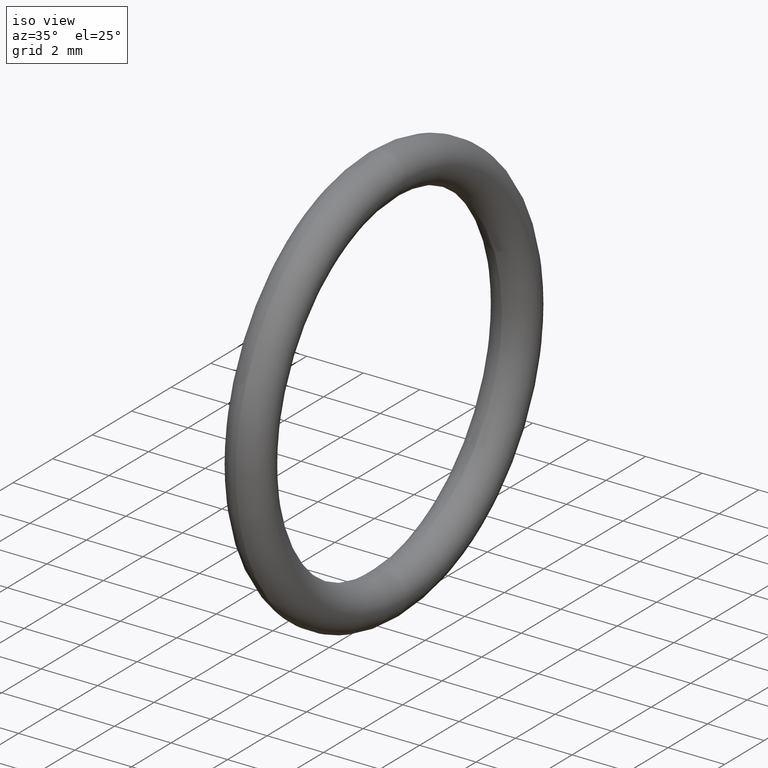
[diagram: clean part render]
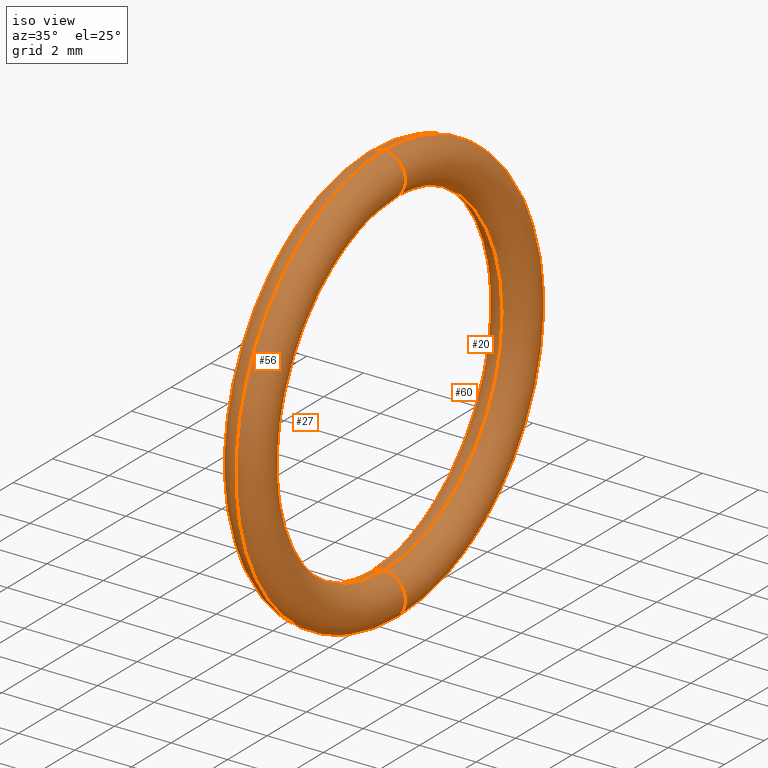
[diagram: same view with one multi-face feature highlighted, each face labeled with its STEP entity id]
A machine part, iso view. The highlighted faces form ONE feature: a constant-radius fillet chain: 4 tangent blend faces with common blend radius 0.762 mm. The faces share edges in the B-rep.
Their STEP definitions:
[1] entity #27 (Torus):
#1 = CIRCLE ( 'NONE', #5, 0.2949999999999999800 ) ;
#2 = DIRECTION ( 'NONE',  ( 0.0000000000000000000, 0.0000000000000000000, 1.000000000000000000 ) ) ;
#3 = DIRECTION ( 'NONE',  ( -1.000000000000000000, 0.0000000000000000000, 0.0000000000000000000 ) ) ;
#4 = CARTESIAN_POINT ( 'NONE',  ( 0.1000000000000000500, 0.0000000000000000000, 0.0000000000000000000 ) ) ;
#5 = AXIS2_PLACEMENT_3D ( 'NONE', #4, #3, #2 ) ;
#24 = EDGE_CURVE ( 'NONE', #52, #49, #71, .T. ) ;
#25 = EDGE_CURVE ( 'NONE', #54, #53, #84, .T. ) ;
#27 = ADVANCED_FACE ( 'NONE', ( #85 ), #86, .T. ) ;
#41 = ORIENTED_EDGE ( 'NONE', *, *, #24, .T. ) ;
#42 = ORIENTED_EDGE ( 'NONE', *, *, #25, .F. ) ;
#43 = ORIENTED_EDGE ( 'NONE', *, *, #50, .T. ) ;
#44 = ORIENTED_EDGE ( 'NONE', *, *, #62, .F. ) ;
#48 = EDGE_LOOP ( 'NONE', ( #44, #42, #43, #41 ) ) ;
#49 = VERTEX_POINT ( 'NONE', #98 ) ;
#50 = EDGE_CURVE ( 'NONE', #54, #52, #93, .T. ) ;
#52 = VERTEX_POINT ( 'NONE', #114 ) ;
#53 = VERTEX_POINT ( 'NONE', #113 ) ;
#54 = VERTEX_POINT ( 'NONE', #112 ) ;
#62 = EDGE_CURVE ( 'NONE', #53, #49, #1, .T. ) ;
#65 = DIRECTION ( 'NONE',  ( 0.0000000000000000000, 0.0000000000000000000, -1.000000000000000000 ) ) ;
#66 = DIRECTION ( 'NONE',  ( 0.0000000000000000000, -1.000000000000000000, 0.0000000000000000000 ) ) ;
#67 = CARTESIAN_POINT ( 'NONE',  ( 0.1000000000000000500, 0.0000000000000000000, 0.2649999999999999600 ) ) ;
#70 = AXIS2_PLACEMENT_3D ( 'NONE', #67, #66, #65 ) ;
#71 = CIRCLE ( 'NONE', #70, 0.03000000000000002300 ) ;
#73 = CARTESIAN_POINT ( 'NONE',  ( 0.1000000000000000500, 3.245314017740485600E-017, -0.2649999999999999600 ) ) ;
#74 = DIRECTION ( 'NONE',  ( 0.0000000000000000000, 0.0000000000000000000, 1.000000000000000000 ) ) ;
#75 = DIRECTION ( 'NONE',  ( -1.000000000000000000, 0.0000000000000000000, 0.0000000000000000000 ) ) ;
#76 = AXIS2_PLACEMENT_3D ( 'NONE', #77, #75, #74 ) ;
#77 = CARTESIAN_POINT ( 'NONE',  ( 0.1000000000000000500, 0.0000000000000000000, 0.0000000000000000000 ) ) ;
#78 = DIRECTION ( 'NONE',  ( 0.0000000000000000000, -1.224646799147353500E-016, 1.000000000000000000 ) ) ;
#79 = DIRECTION ( 'NONE',  ( 0.0000000000000000000, 1.000000000000000000, 1.224646799147353200E-016 ) ) ;
#84 = CIRCLE ( 'NONE', #99, 0.03000000000000002300 ) ;
#85 = FACE_OUTER_BOUND ( 'NONE', #48, .T. ) ;
#86 = TOROIDAL_SURFACE ( 'NONE', #76, 0.2649999999999999600, 0.03000000000000000900 ) ;
#89 = DIRECTION ( 'NONE',  ( 0.0000000000000000000, 0.0000000000000000000, 1.000000000000000000 ) ) ;
#90 = DIRECTION ( 'NONE',  ( -1.000000000000000000, 0.0000000000000000000, 0.0000000000000000000 ) ) ;
#91 = CARTESIAN_POINT ( 'NONE',  ( 0.1000000000000000500, 0.0000000000000000000, 0.0000000000000000000 ) ) ;
#92 = AXIS2_PLACEMENT_3D ( 'NONE', #91, #90, #89 ) ;
#93 = CIRCLE ( 'NONE', #92, 0.2349999999999999600 ) ;
#98 = CARTESIAN_POINT ( 'NONE',  ( 0.1000000000000000500, 0.0000000000000000000, 0.2949999999999999800 ) ) ;
#99 = AXIS2_PLACEMENT_3D ( 'NONE', #73, #79, #78 ) ;
#112 = CARTESIAN_POINT ( 'NONE',  ( 0.1000000000000000500, 2.877919977996279200E-017, -0.2349999999999999600 ) ) ;
#113 = CARTESIAN_POINT ( 'NONE',  ( 0.1000000000000000500, 3.612708057484692000E-017, -0.2949999999999999800 ) ) ;
#114 = CARTESIAN_POINT ( 'NONE',  ( 0.1000000000000000500, 0.0000000000000000000, 0.2349999999999999600 ) ) ;
[2] entity #20 (Torus):
#16 = EDGE_LOOP ( 'NONE', ( #17, #26, #46, #47 ) ) ;
#17 = ORIENTED_EDGE ( 'NONE', *, *, #39, .F. ) ;
#20 = ADVANCED_FACE ( 'NONE', ( #35 ), #31, .T. ) ;
#24 = EDGE_CURVE ( 'NONE', #52, #49, #71, .T. ) ;
#25 = EDGE_CURVE ( 'NONE', #54, #53, #84, .T. ) ;
#26 = ORIENTED_EDGE ( 'NONE', *, *, #24, .F. ) ;
#28 = DIRECTION ( 'NONE',  ( 0.0000000000000000000, 0.0000000000000000000, 1.000000000000000000 ) ) ;
#29 = DIRECTION ( 'NONE',  ( -1.000000000000000000, 0.0000000000000000000, 0.0000000000000000000 ) ) ;
#30 = AXIS2_PLACEMENT_3D ( 'NONE', #34, #29, #28 ) ;
#31 = TOROIDAL_SURFACE ( 'NONE', #30, 0.2649999999999999600, 0.03000000000000000900 ) ;
#34 = CARTESIAN_POINT ( 'NONE',  ( 0.1000000000000000500, 0.0000000000000000000, 0.0000000000000000000 ) ) ;
#35 = FACE_OUTER_BOUND ( 'NONE', #16, .T. ) ;
#39 = EDGE_CURVE ( 'NONE', #49, #53, #97, .T. ) ;
#46 = ORIENTED_EDGE ( 'NONE', *, *, #57, .T. ) ;
#47 = ORIENTED_EDGE ( 'NONE', *, *, #25, .T. ) ;
#49 = VERTEX_POINT ( 'NONE', #98 ) ;
#52 = VERTEX_POINT ( 'NONE', #114 ) ;
#53 = VERTEX_POINT ( 'NONE', #113 ) ;
#54 = VERTEX_POINT ( 'NONE', #112 ) ;
#57 = EDGE_CURVE ( 'NONE', #52, #54, #104, .T. ) ;
#65 = DIRECTION ( 'NONE',  ( 0.0000000000000000000, 0.0000000000000000000, -1.000000000000000000 ) ) ;
#66 = DIRECTION ( 'NONE',  ( 0.0000000000000000000, -1.000000000000000000, 0.0000000000000000000 ) ) ;
#67 = CARTESIAN_POINT ( 'NONE',  ( 0.1000000000000000500, 0.0000000000000000000, 0.2649999999999999600 ) ) ;
#70 = AXIS2_PLACEMENT_3D ( 'NONE', #67, #66, #65 ) ;
#71 = CIRCLE ( 'NONE', #70, 0.03000000000000002300 ) ;
#73 = CARTESIAN_POINT ( 'NONE',  ( 0.1000000000000000500, 3.245314017740485600E-017, -0.2649999999999999600 ) ) ;
#78 = DIRECTION ( 'NONE',  ( 0.0000000000000000000, -1.224646799147353500E-016, 1.000000000000000000 ) ) ;
#79 = DIRECTION ( 'NONE',  ( 0.0000000000000000000, 1.000000000000000000, 1.224646799147353200E-016 ) ) ;
#84 = CIRCLE ( 'NONE', #99, 0.03000000000000002300 ) ;
#88 = CARTESIAN_POINT ( 'NONE',  ( 0.1000000000000000500, 0.0000000000000000000, 0.0000000000000000000 ) ) ;
#94 = DIRECTION ( 'NONE',  ( 0.0000000000000000000, 0.0000000000000000000, 1.000000000000000000 ) ) ;
#95 = DIRECTION ( 'NONE',  ( -1.000000000000000000, 0.0000000000000000000, 0.0000000000000000000 ) ) ;
#96 = AXIS2_PLACEMENT_3D ( 'NONE', #88, #95, #94 ) ;
#97 = CIRCLE ( 'NONE', #96, 0.2949999999999999800 ) ;
#98 = CARTESIAN_POINT ( 'NONE',  ( 0.1000000000000000500, 0.0000000000000000000, 0.2949999999999999800 ) ) ;
#99 = AXIS2_PLACEMENT_3D ( 'NONE', #73, #79, #78 ) ;
#100 = DIRECTION ( 'NONE',  ( 0.0000000000000000000, 0.0000000000000000000, 1.000000000000000000 ) ) ;
#101 = DIRECTION ( 'NONE',  ( -1.000000000000000000, 0.0000000000000000000, 0.0000000000000000000 ) ) ;
#102 = CARTESIAN_POINT ( 'NONE',  ( 0.1000000000000000500, 0.0000000000000000000, 0.0000000000000000000 ) ) ;
#103 = AXIS2_PLACEMENT_3D ( 'NONE', #102, #101, #100 ) ;
#104 = CIRCLE ( 'NONE', #103, 0.2349999999999999600 ) ;
#112 = CARTESIAN_POINT ( 'NONE',  ( 0.1000000000000000500, 2.877919977996279200E-017, -0.2349999999999999600 ) ) ;
#113 = CARTESIAN_POINT ( 'NONE',  ( 0.1000000000000000500, 3.612708057484692000E-017, -0.2949999999999999800 ) ) ;
#114 = CARTESIAN_POINT ( 'NONE',  ( 0.1000000000000000500, 0.0000000000000000000, 0.2349999999999999600 ) ) ;
[3] entity #60 (Torus):
#18 = ORIENTED_EDGE ( 'NONE', *, *, #37, .T. ) ;
#19 = ORIENTED_EDGE ( 'NONE', *, *, #57, .F. ) ;
#21 = EDGE_CURVE ( 'NONE', #49, #52, #68, .T. ) ;
#37 = EDGE_CURVE ( 'NONE', #53, #54, #87, .T. ) ;
#39 = EDGE_CURVE ( 'NONE', #49, #53, #97, .T. ) ;
#49 = VERTEX_POINT ( 'NONE', #98 ) ;
#52 = VERTEX_POINT ( 'NONE', #114 ) ;
#53 = VERTEX_POINT ( 'NONE', #113 ) ;
#54 = VERTEX_POINT ( 'NONE', #112 ) ;
#57 = EDGE_CURVE ( 'NONE', #52, #54, #104, .T. ) ;
#58 = EDGE_LOOP ( 'NONE', ( #61, #59, #18, #19 ) ) ;
#59 = ORIENTED_EDGE ( 'NONE', *, *, #39, .T. ) ;
#60 = ADVANCED_FACE ( 'NONE', ( #117 ), #120, .T. ) ;
#61 = ORIENTED_EDGE ( 'NONE', *, *, #21, .F. ) ;
#63 = DIRECTION ( 'NONE',  ( 0.0000000000000000000, 0.0000000000000000000, -1.000000000000000000 ) ) ;
#64 = DIRECTION ( 'NONE',  ( 0.0000000000000000000, -1.000000000000000000, 0.0000000000000000000 ) ) ;
#68 = CIRCLE ( 'NONE', #72, 0.03000000000000002300 ) ;
#69 = CARTESIAN_POINT ( 'NONE',  ( 0.1000000000000000500, 0.0000000000000000000, 0.2649999999999999600 ) ) ;
#72 = AXIS2_PLACEMENT_3D ( 'NONE', #69, #64, #63 ) ;
#80 = DIRECTION ( 'NONE',  ( 0.0000000000000000000, -1.224646799147353500E-016, 1.000000000000000000 ) ) ;
#81 = DIRECTION ( 'NONE',  ( 0.0000000000000000000, 1.000000000000000000, 1.224646799147353200E-016 ) ) ;
#82 = CARTESIAN_POINT ( 'NONE',  ( 0.1000000000000000500, 3.245314017740485600E-017, -0.2649999999999999600 ) ) ;
#83 = AXIS2_PLACEMENT_3D ( 'NONE', #82, #81, #80 ) ;
#87 = CIRCLE ( 'NONE', #83, 0.03000000000000002300 ) ;
#88 = CARTESIAN_POINT ( 'NONE',  ( 0.1000000000000000500, 0.0000000000000000000, 0.0000000000000000000 ) ) ;
#94 = DIRECTION ( 'NONE',  ( 0.0000000000000000000, 0.0000000000000000000, 1.000000000000000000 ) ) ;
#95 = DIRECTION ( 'NONE',  ( -1.000000000000000000, 0.0000000000000000000, 0.0000000000000000000 ) ) ;
#96 = AXIS2_PLACEMENT_3D ( 'NONE', #88, #95, #94 ) ;
#97 = CIRCLE ( 'NONE', #96, 0.2949999999999999800 ) ;
#98 = CARTESIAN_POINT ( 'NONE',  ( 0.1000000000000000500, 0.0000000000000000000, 0.2949999999999999800 ) ) ;
#100 = DIRECTION ( 'NONE',  ( 0.0000000000000000000, 0.0000000000000000000, 1.000000000000000000 ) ) ;
#101 = DIRECTION ( 'NONE',  ( -1.000000000000000000, 0.0000000000000000000, 0.0000000000000000000 ) ) ;
#102 = CARTESIAN_POINT ( 'NONE',  ( 0.1000000000000000500, 0.0000000000000000000, 0.0000000000000000000 ) ) ;
#103 = AXIS2_PLACEMENT_3D ( 'NONE', #102, #101, #100 ) ;
#104 = CIRCLE ( 'NONE', #103, 0.2349999999999999600 ) ;
#112 = CARTESIAN_POINT ( 'NONE',  ( 0.1000000000000000500, 2.877919977996279200E-017, -0.2349999999999999600 ) ) ;
#113 = CARTESIAN_POINT ( 'NONE',  ( 0.1000000000000000500, 3.612708057484692000E-017, -0.2949999999999999800 ) ) ;
#114 = CARTESIAN_POINT ( 'NONE',  ( 0.1000000000000000500, 0.0000000000000000000, 0.2349999999999999600 ) ) ;
#115 = DIRECTION ( 'NONE',  ( 0.0000000000000000000, 0.0000000000000000000, 1.000000000000000000 ) ) ;
#116 = DIRECTION ( 'NONE',  ( -1.000000000000000000, 0.0000000000000000000, 0.0000000000000000000 ) ) ;
#117 = FACE_OUTER_BOUND ( 'NONE', #58, .T. ) ;
#118 = AXIS2_PLACEMENT_3D ( 'NONE', #119, #116, #115 ) ;
#119 = CARTESIAN_POINT ( 'NONE',  ( 0.1000000000000000500, 0.0000000000000000000, 0.0000000000000000000 ) ) ;
#120 = TOROIDAL_SURFACE ( 'NONE', #118, 0.2649999999999999600, 0.03000000000000000900 ) ;
[4] entity #56 (Torus):
#1 = CIRCLE ( 'NONE', #5, 0.2949999999999999800 ) ;
#2 = DIRECTION ( 'NONE',  ( 0.0000000000000000000, 0.0000000000000000000, 1.000000000000000000 ) ) ;
#3 = DIRECTION ( 'NONE',  ( -1.000000000000000000, 0.0000000000000000000, 0.0000000000000000000 ) ) ;
#4 = CARTESIAN_POINT ( 'NONE',  ( 0.1000000000000000500, 0.0000000000000000000, 0.0000000000000000000 ) ) ;
#5 = AXIS2_PLACEMENT_3D ( 'NONE', #4, #3, #2 ) ;
#21 = EDGE_CURVE ( 'NONE', #49, #52, #68, .T. ) ;
#22 = ORIENTED_EDGE ( 'NONE', *, *, #62, .T. ) ;
#23 = EDGE_LOOP ( 'NONE', ( #38, #22, #55, #51 ) ) ;
#37 = EDGE_CURVE ( 'NONE', #53, #54, #87, .T. ) ;
#38 = ORIENTED_EDGE ( 'NONE', *, *, #37, .F. ) ;
#49 = VERTEX_POINT ( 'NONE', #98 ) ;
#50 = EDGE_CURVE ( 'NONE', #54, #52, #93, .T. ) ;
#51 = ORIENTED_EDGE ( 'NONE', *, *, #50, .F. ) ;
#52 = VERTEX_POINT ( 'NONE', #114 ) ;
#53 = VERTEX_POINT ( 'NONE', #113 ) ;
#54 = VERTEX_POINT ( 'NONE', #112 ) ;
#55 = ORIENTED_EDGE ( 'NONE', *, *, #21, .T. ) ;
#56 = ADVANCED_FACE ( 'NONE', ( #111 ), #109, .T. ) ;
#62 = EDGE_CURVE ( 'NONE', #53, #49, #1, .T. ) ;
#63 = DIRECTION ( 'NONE',  ( 0.0000000000000000000, 0.0000000000000000000, -1.000000000000000000 ) ) ;
#64 = DIRECTION ( 'NONE',  ( 0.0000000000000000000, -1.000000000000000000, 0.0000000000000000000 ) ) ;
#68 = CIRCLE ( 'NONE', #72, 0.03000000000000002300 ) ;
#69 = CARTESIAN_POINT ( 'NONE',  ( 0.1000000000000000500, 0.0000000000000000000, 0.2649999999999999600 ) ) ;
#72 = AXIS2_PLACEMENT_3D ( 'NONE', #69, #64, #63 ) ;
#80 = DIRECTION ( 'NONE',  ( 0.0000000000000000000, -1.224646799147353500E-016, 1.000000000000000000 ) ) ;
#81 = DIRECTION ( 'NONE',  ( 0.0000000000000000000, 1.000000000000000000, 1.224646799147353200E-016 ) ) ;
#82 = CARTESIAN_POINT ( 'NONE',  ( 0.1000000000000000500, 3.245314017740485600E-017, -0.2649999999999999600 ) ) ;
#83 = AXIS2_PLACEMENT_3D ( 'NONE', #82, #81, #80 ) ;
#87 = CIRCLE ( 'NONE', #83, 0.03000000000000002300 ) ;
#89 = DIRECTION ( 'NONE',  ( 0.0000000000000000000, 0.0000000000000000000, 1.000000000000000000 ) ) ;
#90 = DIRECTION ( 'NONE',  ( -1.000000000000000000, 0.0000000000000000000, 0.0000000000000000000 ) ) ;
#91 = CARTESIAN_POINT ( 'NONE',  ( 0.1000000000000000500, 0.0000000000000000000, 0.0000000000000000000 ) ) ;
#92 = AXIS2_PLACEMENT_3D ( 'NONE', #91, #90, #89 ) ;
#93 = CIRCLE ( 'NONE', #92, 0.2349999999999999600 ) ;
#98 = CARTESIAN_POINT ( 'NONE',  ( 0.1000000000000000500, 0.0000000000000000000, 0.2949999999999999800 ) ) ;
#106 = DIRECTION ( 'NONE',  ( 0.0000000000000000000, 0.0000000000000000000, 1.000000000000000000 ) ) ;
#107 = DIRECTION ( 'NONE',  ( -1.000000000000000000, 0.0000000000000000000, 0.0000000000000000000 ) ) ;
#108 = AXIS2_PLACEMENT_3D ( 'NONE', #110, #107, #106 ) ;
#109 = TOROIDAL_SURFACE ( 'NONE', #108, 0.2649999999999999600, 0.03000000000000000900 ) ;
#110 = CARTESIAN_POINT ( 'NONE',  ( 0.1000000000000000500, 0.0000000000000000000, 0.0000000000000000000 ) ) ;
#111 = FACE_OUTER_BOUND ( 'NONE', #23, .T. ) ;
#112 = CARTESIAN_POINT ( 'NONE',  ( 0.1000000000000000500, 2.877919977996279200E-017, -0.2349999999999999600 ) ) ;
#113 = CARTESIAN_POINT ( 'NONE',  ( 0.1000000000000000500, 3.612708057484692000E-017, -0.2949999999999999800 ) ) ;
#114 = CARTESIAN_POINT ( 'NONE',  ( 0.1000000000000000500, 0.0000000000000000000, 0.2349999999999999600 ) ) ;